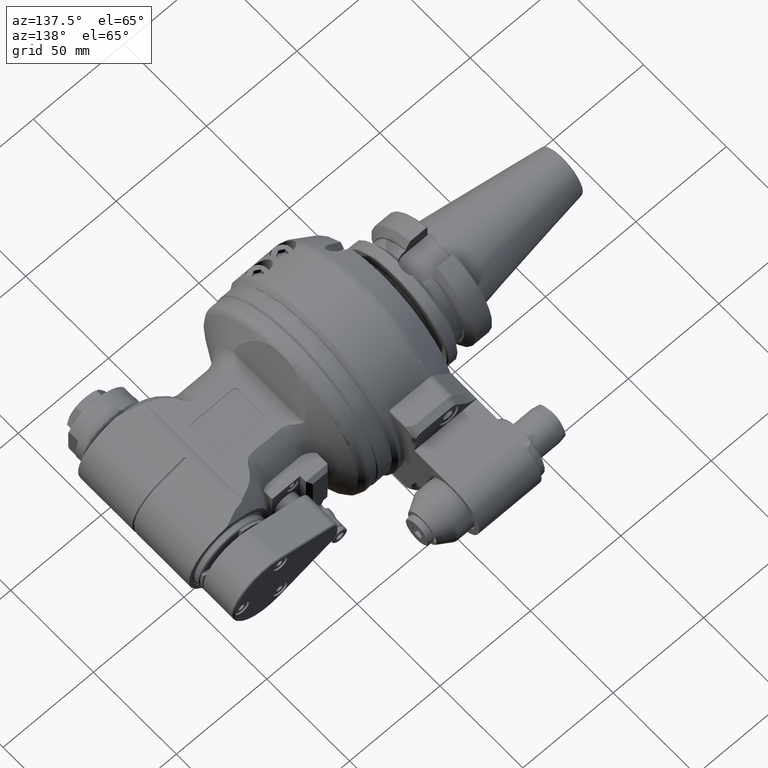
[diagram: clean part render]
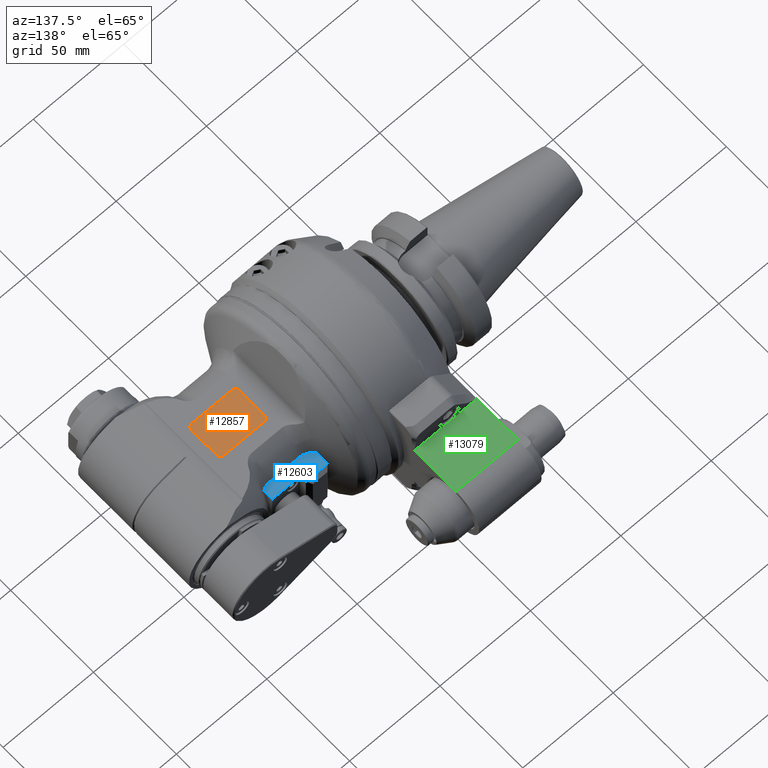
[diagram: same view with three faces highlighted in distinct colors, each labeled with its STEP entity id]
A machine part, auxiliary view with three faces highlighted in distinct colors.
Their STEP definitions:

[orange] entity #12857 — the highlighted planar face has unit normal (0, -0, 1).
#1271=LINE('',#21575,#2124);
#1274=LINE('',#21584,#2127);
#1275=LINE('',#21588,#2128);
#1276=LINE('',#21591,#2129);
#2124=VECTOR('',#16855,22.5);
#2127=VECTOR('',#16864,15.5);
#2128=VECTOR('',#16867,22.5);
#2129=VECTOR('',#16870,15.5);
#3159=FACE_OUTER_BOUND('',#4025,.T.);
#4025=EDGE_LOOP('',(#10353,#10354,#10355,#10356,#10357,#10358,#10359,#10360));
#4816=CIRCLE('',#14109,2.);
#4817=CIRCLE('',#14110,2.);
#4818=CIRCLE('',#14111,2.);
#4819=CIRCLE('',#14112,2.);
#5772=VERTEX_POINT('',#21573);
#5773=VERTEX_POINT('',#21574);
#5774=VERTEX_POINT('',#21579);
#5775=VERTEX_POINT('',#21581);
#5776=VERTEX_POINT('',#21583);
#5777=VERTEX_POINT('',#21585);
#5778=VERTEX_POINT('',#21587);
#5779=VERTEX_POINT('',#21589);
#7391=EDGE_CURVE('',#5772,#5773,#1271,.T.);
#7394=EDGE_CURVE('',#5774,#5772,#4816,.T.);
#7395=EDGE_CURVE('',#5773,#5775,#4817,.T.);
#7396=EDGE_CURVE('',#5775,#5776,#1274,.T.);
#7397=EDGE_CURVE('',#5776,#5777,#4818,.T.);
#7398=EDGE_CURVE('',#5777,#5778,#1275,.T.);
#7399=EDGE_CURVE('',#5779,#5778,#4819,.T.);
#7400=EDGE_CURVE('',#5779,#5774,#1276,.T.);
#10353=ORIENTED_EDGE('',*,*,#7394,.T.);
#10354=ORIENTED_EDGE('',*,*,#7391,.T.);
#10355=ORIENTED_EDGE('',*,*,#7395,.T.);
#10356=ORIENTED_EDGE('',*,*,#7396,.T.);
#10357=ORIENTED_EDGE('',*,*,#7397,.T.);
#10358=ORIENTED_EDGE('',*,*,#7398,.T.);
#10359=ORIENTED_EDGE('',*,*,#7399,.F.);
#10360=ORIENTED_EDGE('',*,*,#7400,.T.);
#12246=PLANE('',#14108);
#12857=ADVANCED_FACE('',(#3159),#12246,.T.);
#14108=AXIS2_PLACEMENT_3D('',#21578,#16858,#16859);
#14109=AXIS2_PLACEMENT_3D('',#21580,#16860,#16861);
#14110=AXIS2_PLACEMENT_3D('',#21582,#16862,#16863);
#14111=AXIS2_PLACEMENT_3D('',#21586,#16865,#16866);
#14112=AXIS2_PLACEMENT_3D('',#21590,#16868,#16869);
#16855=DIRECTION('',(1.,0.,0.));
#16858=DIRECTION('center_axis',(0.,0.,1.));
#16859=DIRECTION('ref_axis',(1.,0.,0.));
#16860=DIRECTION('center_axis',(0.,0.,1.));
#16861=DIRECTION('ref_axis',(-1.,0.,0.));
#16862=DIRECTION('center_axis',(0.,0.,1.));
#16863=DIRECTION('ref_axis',(0.,-1.,0.));
#16864=DIRECTION('',(0.,1.,0.));
#16865=DIRECTION('center_axis',(0.,0.,1.));
#16866=DIRECTION('ref_axis',(1.,0.,0.));
#16867=DIRECTION('',(-1.,0.,0.));
#16868=DIRECTION('center_axis',(0.,0.,-1.));
#16869=DIRECTION('ref_axis',(-1.,0.,0.));
#16870=DIRECTION('',(0.,-1.,0.));
#21573=CARTESIAN_POINT('',(38.5,-9.75,24.7));
#21574=CARTESIAN_POINT('',(61.,-9.75,24.7));
#21575=CARTESIAN_POINT('',(38.5,-9.75,24.7));
#21578=CARTESIAN_POINT('Origin',(0.,0.,24.7));
#21579=CARTESIAN_POINT('',(36.5,-7.75,24.7));
#21580=CARTESIAN_POINT('Origin',(38.5,-7.75,24.7));
#21581=CARTESIAN_POINT('',(63.,-7.75,24.7));
#21582=CARTESIAN_POINT('Origin',(61.,-7.75,24.7));
#21583=CARTESIAN_POINT('',(63.,7.75,24.7));
#21584=CARTESIAN_POINT('',(63.,-7.75,24.7));
#21585=CARTESIAN_POINT('',(61.,9.75,24.7));
#21586=CARTESIAN_POINT('Origin',(61.,7.75,24.7));
#21587=CARTESIAN_POINT('',(38.5,9.75,24.7));
#21588=CARTESIAN_POINT('',(61.,9.75,24.7));
#21589=CARTESIAN_POINT('',(36.5,7.75,24.7));
#21590=CARTESIAN_POINT('Origin',(38.5,7.75,24.7));
#21591=CARTESIAN_POINT('',(36.5,7.75,24.7));

[blue] entity #12603 — the highlighted planar face has unit normal (0, -0, 1).
#80=B_SPLINE_CURVE_WITH_KNOTS('',3,(#19302,#19303,#19304,#19305,#19306,
#19307,#19308,#19309,#19310,#19311,#19312,#19313),.UNSPECIFIED.,.F.,.F.,
(4,2,2,2,2,4),(-3.47563852123537,-3.4169091801371,-3.24618549335491,-3.07546180657272,
-2.91354086424383,-2.75161992191493),.UNSPECIFIED.);
#88=B_SPLINE_CURVE_WITH_KNOTS('',3,(#19628,#19629,#19630,#19631,#19632,
#19633,#19634,#19635,#19636,#19637),.UNSPECIFIED.,.F.,.F.,(4,2,2,2,4),(-2.14714879216461,
-2.02132054251014,-1.89549229285568,-1.76278724492251,-1.73390503975143),
 .UNSPECIFIED.);
#990=LINE('',#19857,#1843);
#995=LINE('',#19870,#1848);
#996=LINE('',#19872,#1849);
#997=LINE('',#19873,#1850);
#998=LINE('',#19875,#1851);
#999=LINE('',#19876,#1852);
#1843=VECTOR('',#15704,15.5);
#1848=VECTOR('',#15715,3.5);
#1849=VECTOR('',#15718,16.77201463612);
#1850=VECTOR('',#15719,5.028221509122);
#1851=VECTOR('',#15720,12.);
#1852=VECTOR('',#15721,6.719711863672);
#2905=FACE_OUTER_BOUND('',#3744,.T.);
#3744=EDGE_LOOP('',(#9142,#9143,#9144,#9145,#9146,#9147,#9148,#9149));
#5284=VERTEX_POINT('',#19299);
#5285=VERTEX_POINT('',#19301);
#5344=VERTEX_POINT('',#19625);
#5345=VERTEX_POINT('',#19627);
#5413=VERTEX_POINT('',#19854);
#5414=VERTEX_POINT('',#19856);
#5419=VERTEX_POINT('',#19868);
#5420=VERTEX_POINT('',#19874);
#6618=EDGE_CURVE('',#5285,#5284,#80,.T.);
#6710=EDGE_CURVE('',#5345,#5344,#88,.T.);
#6813=EDGE_CURVE('',#5414,#5413,#990,.T.);
#6820=EDGE_CURVE('',#5419,#5413,#995,.T.);
#6821=EDGE_CURVE('',#5345,#5284,#996,.T.);
#6822=EDGE_CURVE('',#5344,#5414,#997,.T.);
#6823=EDGE_CURVE('',#5420,#5419,#998,.T.);
#6824=EDGE_CURVE('',#5420,#5285,#999,.T.);
#9142=ORIENTED_EDGE('',*,*,#6821,.F.);
#9143=ORIENTED_EDGE('',*,*,#6710,.T.);
#9144=ORIENTED_EDGE('',*,*,#6822,.T.);
#9145=ORIENTED_EDGE('',*,*,#6813,.T.);
#9146=ORIENTED_EDGE('',*,*,#6820,.F.);
#9147=ORIENTED_EDGE('',*,*,#6823,.F.);
#9148=ORIENTED_EDGE('',*,*,#6824,.T.);
#9149=ORIENTED_EDGE('',*,*,#6618,.T.);
#12126=PLANE('',#13676);
#12603=ADVANCED_FACE('',(#2905),#12126,.T.);
#13676=AXIS2_PLACEMENT_3D('',#19871,#15716,#15717);
#15704=DIRECTION('',(-1.,0.,7.285075367331E-9));
#15715=DIRECTION('',(0.,-1.,8.06560913296E-9));
#15716=DIRECTION('center_axis',(0.,0.,1.));
#15717=DIRECTION('ref_axis',(-1.,0.,0.));
#15718=DIRECTION('',(-1.,2.374546004365E-13,-4.942910884198E-13));
#15719=DIRECTION('',(0.,1.,0.));
#15720=DIRECTION('',(1.,0.,0.));
#15721=DIRECTION('',(0.,-1.,4.300235967712E-9));
#19299=CARTESIAN_POINT('',(35.16580758206,27.03701175063,12.99999983062));
#19301=CARTESIAN_POINT('',(28.5000000036704,30.2802881625511,12.9999998863299));
#19302=CARTESIAN_POINT('Ctrl Pts',(28.5000000105604,30.2802881682947,12.99999983062));
#19303=CARTESIAN_POINT('Ctrl Pts',(28.631659792513,30.1223470298177,12.99999983062));
#19304=CARTESIAN_POINT('Ctrl Pts',(28.7658394681226,29.9716209944044,12.99999983062));
#19305=CARTESIAN_POINT('Ctrl Pts',(29.2912565670434,29.4158131689353,12.99999983062));
#19306=CARTESIAN_POINT('Ctrl Pts',(29.7576562912874,29.0008886619755,12.99999983062));
#19307=CARTESIAN_POINT('Ctrl Pts',(30.7676379148125,28.2803011686386,12.99999983062));
#19308=CARTESIAN_POINT('Ctrl Pts',(31.3114315125013,27.9749349466719,12.99999983062));
#19309=CARTESIAN_POINT('Ctrl Pts',(32.3262131947443,27.5280683043941,12.99999983062));
#19310=CARTESIAN_POINT('Ctrl Pts',(32.8874470048164,27.3402117390465,12.99999983062));
#19311=CARTESIAN_POINT('Ctrl Pts',(34.0373540101226,27.0945806769516,12.99999983062));
#19312=CARTESIAN_POINT('Ctrl Pts',(34.626071107547,27.0370117506332,12.99999983062));
#19313=CARTESIAN_POINT('Ctrl Pts',(35.16580758197,27.0370117506332,12.99999983062));
#19625=CARTESIAN_POINT('',(56.,28.47177849088,12.99999983062));
#19627=CARTESIAN_POINT('',(51.93782221817,27.03701175063,12.99999983062));
#19628=CARTESIAN_POINT('Ctrl Pts',(51.93782221817,27.0370117506332,12.99999983062));
#19629=CARTESIAN_POINT('Ctrl Pts',(52.3572497170182,27.0370117506332,12.99999983062));
#19630=CARTESIAN_POINT('Ctrl Pts',(52.8147485422833,27.081703491657,12.99999983062));
#19631=CARTESIAN_POINT('Ctrl Pts',(53.7083613314764,27.272469991275,12.99999983062));
#19632=CARTESIAN_POINT('Ctrl Pts',(54.1445072011879,27.4183952621068,12.99999983062));
#19633=CARTESIAN_POINT('Ctrl Pts',(54.933196427592,27.7657136132776,12.99999983062));
#19634=CARTESIAN_POINT('Ctrl Pts',(55.355839682832,28.0031577576042,12.99999983062));
#19635=CARTESIAN_POINT('Ctrl Pts',(55.8336285994497,28.3443804351613,12.99999983062));
#19636=CARTESIAN_POINT('Ctrl Pts',(55.917677409013,28.4072927010432,12.99999983062));
#19637=CARTESIAN_POINT('Ctrl Pts',(55.9999999999996,28.4717784908806,12.99999983062));
#19854=CARTESIAN_POINT('',(40.5,33.5,12.9999999430825));
#19856=CARTESIAN_POINT('',(56.,33.5,12.99999983062));
#19857=CARTESIAN_POINT('',(56.,33.5,12.99999983062));
#19868=CARTESIAN_POINT('',(40.4999999996426,37.0000000003565,12.9999999149331));
#19870=CARTESIAN_POINT('',(40.5,37.,12.99999991531));
#19871=CARTESIAN_POINT('Origin',(51.93782221817,27.,12.99999983062));
#19872=CARTESIAN_POINT('',(51.93782221818,27.03701175063,12.99999983063));
#19873=CARTESIAN_POINT('',(56.,28.47177849088,12.99999983062));
#19874=CARTESIAN_POINT('',(28.5000000003571,37.0000000003561,12.9999999149324));
#19875=CARTESIAN_POINT('',(28.5,37.,12.99999991531));
#19876=CARTESIAN_POINT('',(28.5,37.,12.99999991531));

[green] entity #13079 — the highlighted planar face has unit normal (-0, 0, -1).
#1517=LINE('',#23830,#2370);
#1540=LINE('',#23906,#2393);
#1549=LINE('',#23937,#2402);
#1552=LINE('',#23945,#2405);
#2370=VECTOR('',#17843,25.);
#2393=VECTOR('',#17900,25.);
#2402=VECTOR('',#17929,34.5);
#2405=VECTOR('',#17940,34.5);
#3381=FACE_OUTER_BOUND('',#4278,.T.);
#4278=EDGE_LOOP('',(#11503,#11504,#11505,#11506));
#6130=VERTEX_POINT('',#23827);
#6131=VERTEX_POINT('',#23829);
#6154=VERTEX_POINT('',#23903);
#6155=VERTEX_POINT('',#23905);
#7925=EDGE_CURVE('',#6131,#6130,#1517,.T.);
#7960=EDGE_CURVE('',#6155,#6154,#1540,.T.);
#7977=EDGE_CURVE('',#6154,#6131,#1549,.T.);
#7981=EDGE_CURVE('',#6155,#6130,#1552,.T.);
#11503=ORIENTED_EDGE('',*,*,#7977,.T.);
#11504=ORIENTED_EDGE('',*,*,#7925,.T.);
#11505=ORIENTED_EDGE('',*,*,#7981,.F.);
#11506=ORIENTED_EDGE('',*,*,#7960,.T.);
#12360=PLANE('',#14509);
#13079=ADVANCED_FACE('',(#3381),#12360,.F.);
#14509=AXIS2_PLACEMENT_3D('',#23944,#17938,#17939);
#17843=DIRECTION('',(0.,1.,0.));
#17900=DIRECTION('',(0.,-1.,0.));
#17929=DIRECTION('',(1.,0.,0.));
#17938=DIRECTION('center_axis',(0.,0.,-1.));
#17939=DIRECTION('ref_axis',(1.,0.,0.));
#17940=DIRECTION('',(1.,0.,0.));
#23827=CARTESIAN_POINT('',(-5.,82.25,15.));
#23829=CARTESIAN_POINT('',(-5.,57.25,15.));
#23830=CARTESIAN_POINT('',(-5.,57.25,15.));
#23903=CARTESIAN_POINT('',(-39.5,57.25,15.));
#23905=CARTESIAN_POINT('',(-39.5,82.25,15.));
#23906=CARTESIAN_POINT('',(-39.5,82.25,15.));
#23937=CARTESIAN_POINT('',(-39.5,57.25,15.));
#23944=CARTESIAN_POINT('Origin',(-52.3,52.7999976,15.));
#23945=CARTESIAN_POINT('',(-39.5,82.25,15.));